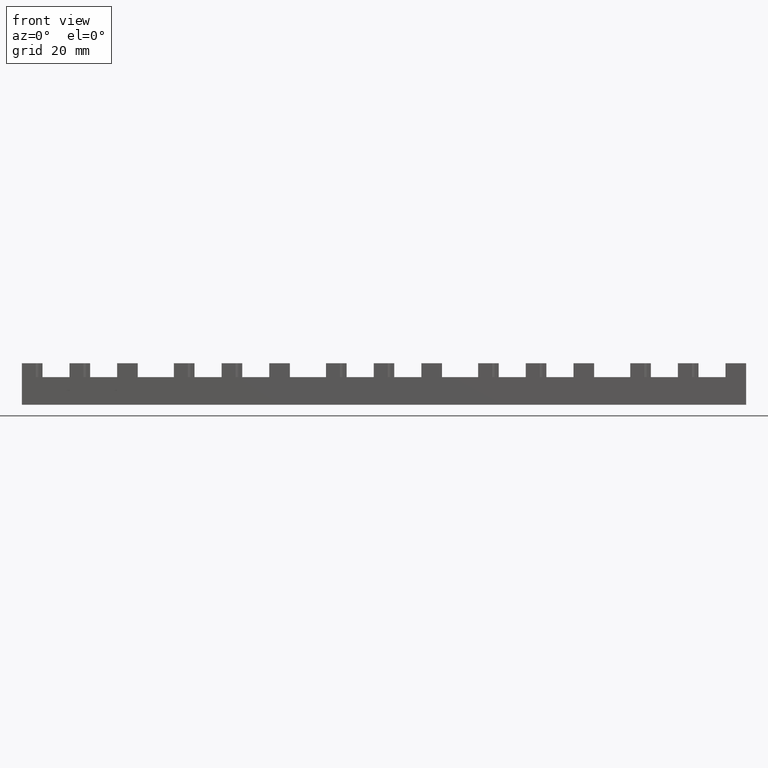
[diagram: clean part render]
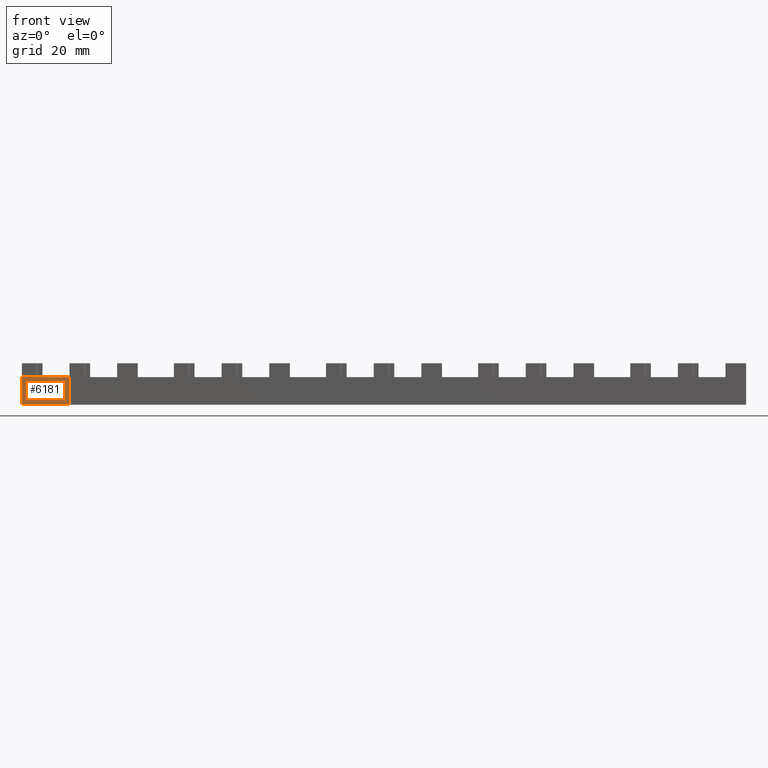
[diagram: same view with one face highlighted and labeled with its STEP entity id]
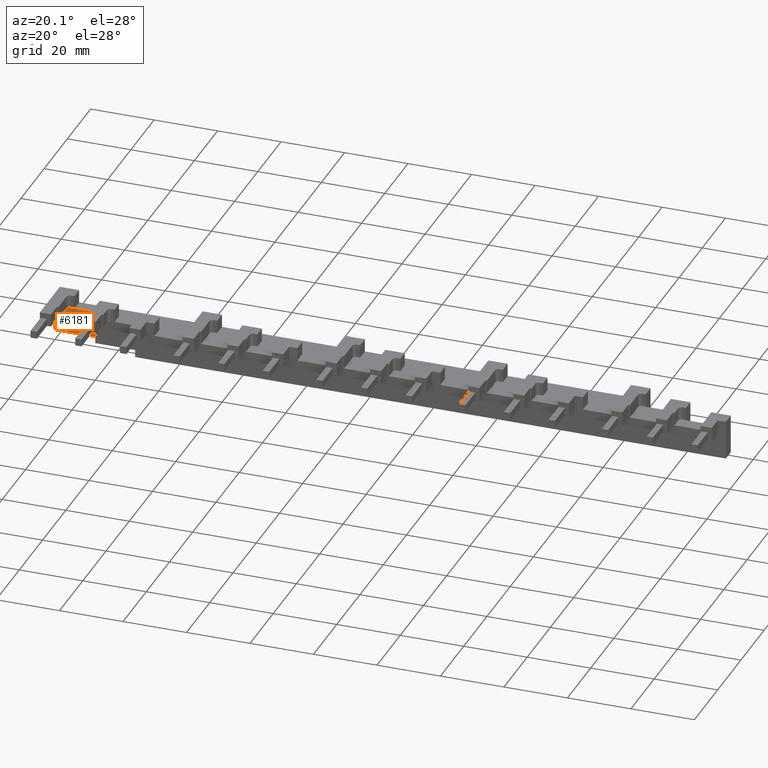
[diagram: same view with one face highlighted and labeled with its STEP entity id]
A machine part, front view. The second image highlights one B-rep face of the part: STEP entity #6181.
A second angle (auxiliary view) of the same face is appended — the face is thin or edge-on in the first view.
In plain terms, the highlighted planar face has unit normal (0, 1, 0).
Its self-contained STEP definition (entity closure, byte-faithful):
#6117=CARTESIAN_POINT('',(4.564110105647004,4.263256E-014,103.99999999999224));
#6118=VERTEX_POINT('',#6117);
#6126=CARTESIAN_POINT('',(14.099999999999739,1.136868E-013,103.99999999999217));
#6127=VERTEX_POINT('',#6126);
#6128=CARTESIAN_POINT('',(4.564110105647004,3.927477E-014,103.99999999999223));
#6129=DIRECTION('',(1.0,0.0,0.0));
#6130=VECTOR('',#6129,9.535889894352735);
#6131=LINE('',#6128,#6130);
#6132=EDGE_CURVE('',#6118,#6127,#6131,.T.);
#6143=CARTESIAN_POINT('',(7.049999999999871,5.684342E-014,99.899999999992204));
#6144=DIRECTION('',(0.0,1.0,0.0));
#6145=DIRECTION('',(0.0,0.0,1.0));
#6146=AXIS2_PLACEMENT_3D('',#6143,#6144,#6145);
#6147=PLANE('',#6146);
#6148=CARTESIAN_POINT('',(5.572854E-014,1.421085E-014,103.99999999999226));
#6149=VERTEX_POINT('',#6148);
#6150=CARTESIAN_POINT('',(0.0,1.421085E-014,95.799999999992252));
#6151=VERTEX_POINT('',#6150);
#6152=CARTESIAN_POINT('',(5.572854E-014,1.436810E-014,103.99999999999227));
#6153=DIRECTION('',(0.0,0.0,-1.0));
#6154=VECTOR('',#6153,8.200000000000017);
#6155=LINE('',#6152,#6154);
#6156=EDGE_CURVE('',#6149,#6151,#6155,.T.);
#6157=ORIENTED_EDGE('',*,*,#6156,.T.);
#6158=CARTESIAN_POINT('',(14.099999999999683,1.136868E-013,95.799999999992167));
#6159=VERTEX_POINT('',#6158);
#6160=CARTESIAN_POINT('',(14.099999999999682,1.130492E-013,95.799999999992181));
#6161=DIRECTION('',(-1.0,0.0,0.0));
#6162=VECTOR('',#6161,14.099999999999682);
#6163=LINE('',#6160,#6162);
#6164=EDGE_CURVE('',#6159,#6151,#6163,.T.);
#6165=ORIENTED_EDGE('',*,*,#6164,.F.);
#6166=CARTESIAN_POINT('',(14.099999999999739,1.138441E-013,103.99999999999217));
#6167=DIRECTION('',(0.0,0.0,-1.0));
#6168=VECTOR('',#6167,8.200000000000003);
#6169=LINE('',#6166,#6168);
#6170=EDGE_CURVE('',#6127,#6159,#6169,.T.);
#6171=ORIENTED_EDGE('',*,*,#6170,.F.);
#6172=ORIENTED_EDGE('',*,*,#6132,.F.);
#6173=CARTESIAN_POINT('',(5.595524E-014,1.126494E-014,103.99999999999227));
#6174=DIRECTION('',(1.0,0.0,0.0));
#6175=VECTOR('',#6174,4.564110105646948);
#6176=LINE('',#6173,#6175);
#6177=EDGE_CURVE('',#6149,#6118,#6176,.T.);
#6178=ORIENTED_EDGE('',*,*,#6177,.F.);
#6179=EDGE_LOOP('',(#6157,#6165,#6171,#6172,#6178));
#6180=FACE_OUTER_BOUND('',#6179,.T.);
#6181=ADVANCED_FACE('',(#6180),#6147,.F.);